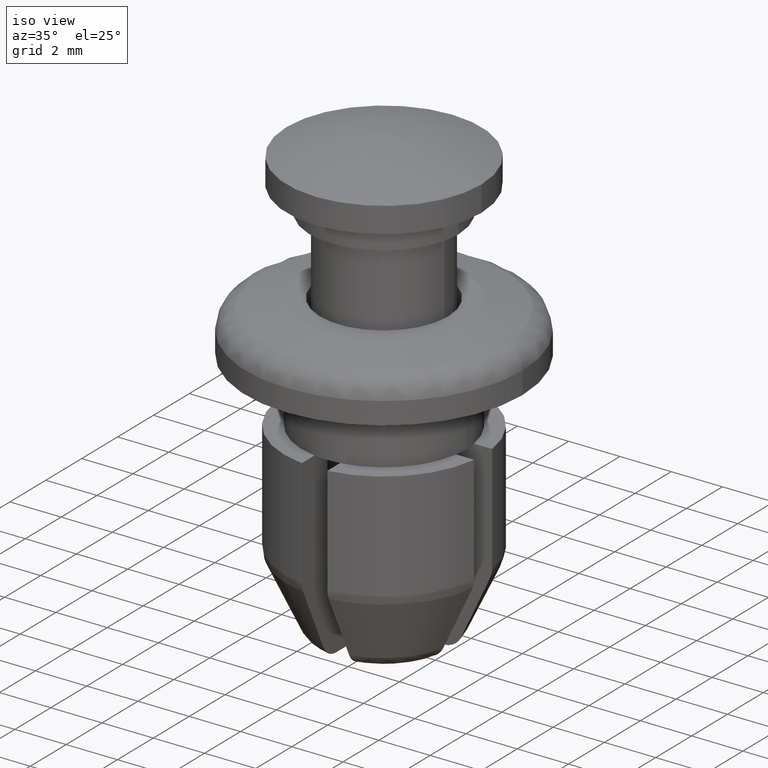
[diagram: clean part render]
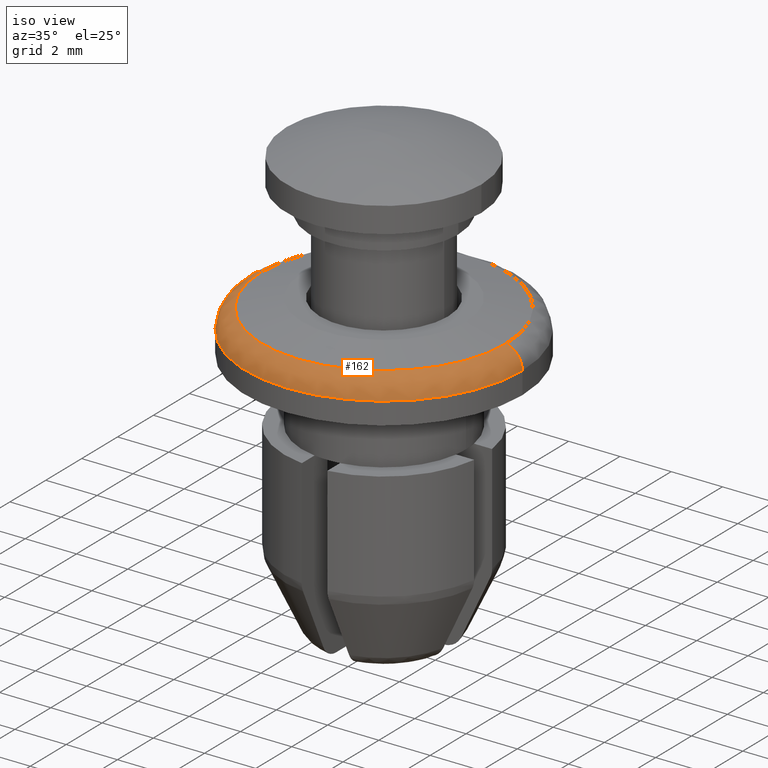
[diagram: same view with one face highlighted and labeled with its STEP entity id]
A machine part, iso view. The second image highlights one B-rep face of the part: STEP entity #162.
In plain terms, the highlighted face is a freeform B-spline surface patch.
Its self-contained STEP definition (entity closure, byte-faithful):
#162=ADVANCED_FACE('',(#694),#693,.T.);
#693=( BOUNDED_SURFACE() B_SPLINE_SURFACE( 2,2,((#1331,#1332,#1333,#1334,#1335),(#1336,#1337,#1338,#1339,#1340),(#1341,#1342,#1343,#1344,#1345),(#1346,#1347,#1348,#1349,#1350),(#1351,#1352,#1353,#1354,#1355)), .UNSPECIFIED.,.F.,.F.,.F.) B_SPLINE_SURFACE_WITH_KNOTS((3,2,3),(3,2,3),(0.00000000000E+00,5.00000000000E-01,1.00000000000E+00),(0.00000000000E+00,5.00000000000E-01,1.00000000000E+00), .UNSPECIFIED. ) GEOMETRIC_REPRESENTATION_ITEM() RATIONAL_B_SPLINE_SURFACE(((1.00000000000E+00,7.07106781187E-01,1.00000000000E+00,7.07106781187E-01,1.00000000000E+00),(7.07106781187E-01,5.00000000000E-01,7.07106781187E-01,5.00000000000E-01,7.07106781187E-01),(1.00000000000E+00,7.07106781187E-01,1.00000000000E+00,7.07106781187E-01,1.00000000000E+00),(7.07106781187E-01,5.00000000000E-01,7.07106781187E-01,5.00000000000E-01,7.07106781187E-01),(1.00000000000E+00,7.07106781187E-01,1.00000000000E+00,7.07106781187E-01,1.00000000000E+00))) REPRESENTATION_ITEM('') SURFACE() );
#694=FACE_OUTER_BOUND('',#1356,.T.);
#1331=CARTESIAN_POINT('',(3.80000000000E+00,-4.65350414453E-16,-1.13900000000E+00));
#1332=CARTESIAN_POINT('',(3.80000000000E+00,-4.65350414453E-16,-3.39000000000E-01));
#1333=CARTESIAN_POINT('',(4.60000000000E+00,-5.63318922758E-16,-3.39000000000E-01));
#1334=CARTESIAN_POINT('',(5.40000000000E+00,-6.61287431064E-16,-3.39000000000E-01));
#1335=CARTESIAN_POINT('',(5.40000000000E+00,-6.61287431064E-16,-1.13900000000E+00));
#1336=CARTESIAN_POINT('',(3.80000000000E+00,-3.80000000000E+00,-1.13900000000E+00));
#1337=CARTESIAN_POINT('',(3.80000000000E+00,-3.80000000000E+00,-3.39000000000E-01));
#1338=CARTESIAN_POINT('',(4.60000000000E+00,-4.60000000000E+00,-3.39000000000E-01));
#1339=CARTESIAN_POINT('',(5.40000000000E+00,-5.40000000000E+00,-3.39000000000E-01));
#1340=CARTESIAN_POINT('',(5.40000000000E+00,-5.40000000000E+00,-1.13900000000E+00));
#1341=CARTESIAN_POINT('',(-2.32667522615E-16,-3.80000000000E+00,-1.13900000000E+00));
#1342=CARTESIAN_POINT('',(-2.32667522615E-16,-3.80000000000E+00,-3.39000000000E-01));
#1343=CARTESIAN_POINT('',(-2.81650158954E-16,-4.60000000000E+00,-3.39000000000E-01));
#1344=CARTESIAN_POINT('',(-3.30632795294E-16,-5.40000000000E+00,-3.39000000000E-01));
#1345=CARTESIAN_POINT('',(-3.30632795294E-16,-5.40000000000E+00,-1.13900000000E+00));
#1346=CARTESIAN_POINT('',(-3.80000000000E+00,-3.80000000000E+00,-1.13900000000E+00));
#1347=CARTESIAN_POINT('',(-3.80000000000E+00,-3.80000000000E+00,-3.39000000000E-01));
#1348=CARTESIAN_POINT('',(-4.60000000000E+00,-4.60000000000E+00,-3.39000000000E-01));
#1349=CARTESIAN_POINT('',(-5.40000000000E+00,-5.40000000000E+00,-3.39000000000E-01));
#1350=CARTESIAN_POINT('',(-5.40000000000E+00,-5.40000000000E+00,-1.13900000000E+00));
#1351=CARTESIAN_POINT('',(-3.80000000000E+00,-1.53692234909E-20,-1.13900000000E+00));
#1352=CARTESIAN_POINT('',(-3.80000000000E+00,-1.53692234909E-20,-3.39000000000E-01));
#1353=CARTESIAN_POINT('',(-4.60000000000E+00,-1.86048494890E-20,-3.39000000000E-01));
#1354=CARTESIAN_POINT('',(-5.40000000000E+00,-2.18404754871E-20,-3.39000000000E-01));
#1355=CARTESIAN_POINT('',(-5.40000000000E+00,-2.18404754871E-20,-1.13900000000E+00));
#1356=EDGE_LOOP('',(#1826,#1827,#1828,#1829));
#1826=ORIENTED_EDGE('',*,*,#2088,.F.);
#1827=ORIENTED_EDGE('',*,*,#2089,.F.);
#1828=ORIENTED_EDGE('',*,*,#2084,.T.);
#1829=ORIENTED_EDGE('',*,*,#2090,.T.);
#2084=EDGE_CURVE('',#3060,#3061,#3062,.T.);
#2088=EDGE_CURVE('',#3086,#3087,#3088,.T.);
#2089=EDGE_CURVE('',#3060,#3086,#3094,.T.);
#2090=EDGE_CURVE('',#3061,#3087,#3100,.T.);
#3060=VERTEX_POINT('',#4053);
#3061=VERTEX_POINT('',#4054);
#3062=CIRCLE('',#4058,4.76500400604E+00);
#3086=VERTEX_POINT('',#4067);
#3087=VERTEX_POINT('',#4068);
#3088=CIRCLE('',#4072,5.40000000000E+00);
#3094=(BOUNDED_CURVE() B_SPLINE_CURVE(2,(#4073,#4074,#4075),.UNSPECIFIED.,.F.,.F.) B_SPLINE_CURVE_WITH_KNOTS((3,3),(5.70663352808E-01,1.00000000000E+00),.UNSPECIFIED.) CURVE() GEOMETRIC_REPRESENTATION_ITEM() RATIONAL_B_SPLINE_CURVE((9.28912784348E-01,7.48500414898E-01,1.00000000000E+00)) REPRESENTATION_ITEM('') );
#3100=(BOUNDED_CURVE() B_SPLINE_CURVE(2,(#4076,#4077,#4078),.UNSPECIFIED.,.F.,.F.) B_SPLINE_CURVE_WITH_KNOTS((3,3),(5.70663335655E-01,1.00000000000E+00),.UNSPECIFIED.) CURVE() GEOMETRIC_REPRESENTATION_ITEM() RATIONAL_B_SPLINE_CURVE((6.96684599073E-01,5.61375303638E-01,7.50000000000E-01)) REPRESENTATION_ITEM('') );
#4053=CARTESIAN_POINT('',(4.76500400604E+00,0.00000000000E+00,-3.56201380946E-01));
#4054=CARTESIAN_POINT('',(-4.76500400604E+00,0.00000000000E+00,-3.56201380946E-01));
#4055=CARTESIAN_POINT('',(0.00000000000E+00,0.00000000000E+00,-3.56201380946E-01));
#4056=DIRECTION('',(-0.00000000000E+00,0.00000000000E+00,-1.00000000000E+00));
#4057=DIRECTION('',(-1.00000000000E+00,-1.22460635382E-16,0.00000000000E+00));
#4058=AXIS2_PLACEMENT_3D('',#4055,#4056,#4057);
#4067=CARTESIAN_POINT('',(5.40000000000E+00,2.96059473233E-16,-1.13900000000E+00));
#4068=CARTESIAN_POINT('',(-5.40000000000E+00,0.00000000000E+00,-1.13900000000E+00));
#4069=CARTESIAN_POINT('',(0.00000000000E+00,0.00000000000E+00,-1.13900000000E+00));
#4070=DIRECTION('',(-0.00000000000E+00,0.00000000000E+00,-1.00000000000E+00));
#4071=DIRECTION('',(-1.00000000000E+00,-1.22460635382E-16,0.00000000000E+00));
#4072=AXIS2_PLACEMENT_3D('',#4069,#4070,#4071);
#4073=CARTESIAN_POINT('',(4.76500404437E+00,-5.83525422873E-16,-3.56201389027E-01));
#4074=CARTESIAN_POINT('',(5.40000000000E+00,-6.61287431064E-16,-4.90050503435E-01));
#4075=CARTESIAN_POINT('',(5.40000000000E+00,-6.61287431064E-16,-1.13900000000E+00));
#4076=CARTESIAN_POINT('',(-4.76500400349E+00,7.87241589314E-16,-3.56201380410E-01));
#4077=CARTESIAN_POINT('',(-5.40000000000E+00,9.04992206953E-16,-4.90050468798E-01));
#4078=CARTESIAN_POINT('',(-5.40000000000E+00,2.96059473233E-16,-1.13900000000E+00));